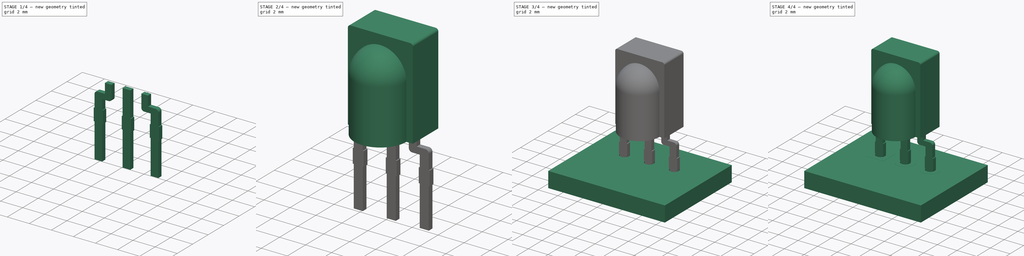
[diagram: build sequence overview — one tinted view per stage of 4, left to right]
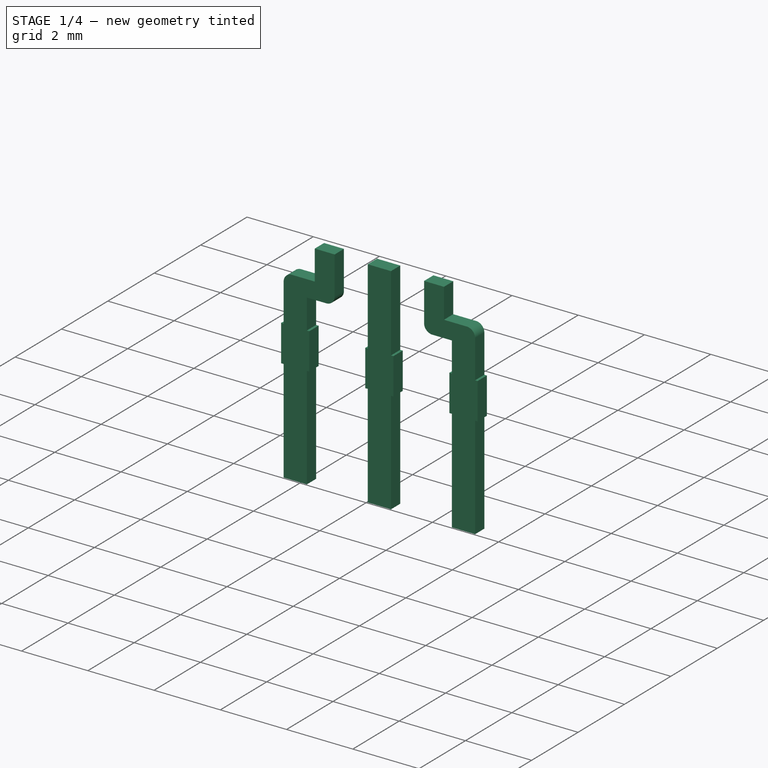
[diagram: stage 1 of 4 — iso view after this stage's code; geometry added in this stage tinted green]
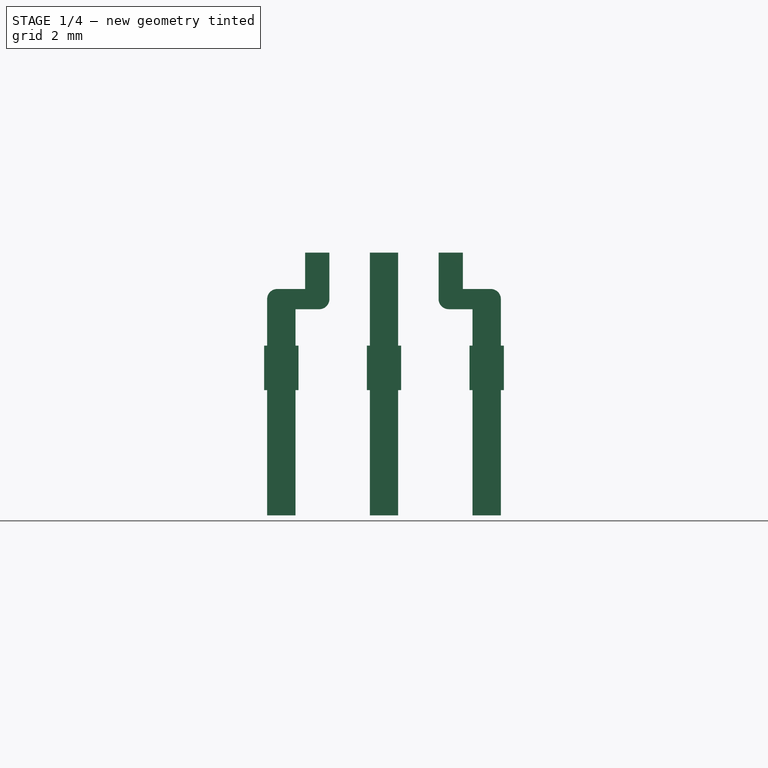
[diagram: stage 1 of 4 — front view after this stage's code; geometry added in this stage tinted green]
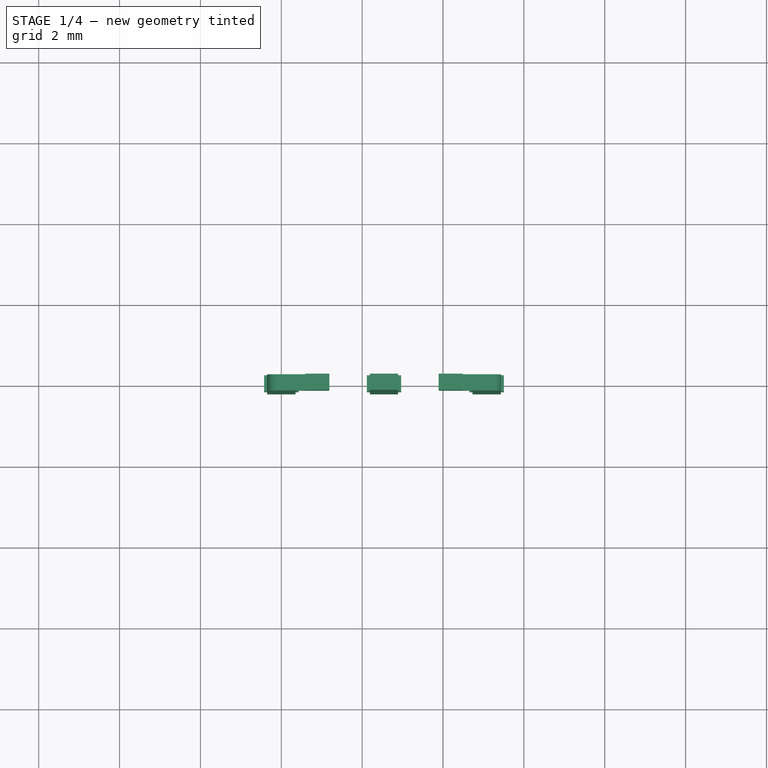
[diagram: stage 1 of 4 — top view after this stage's code; geometry added in this stage tinted green]
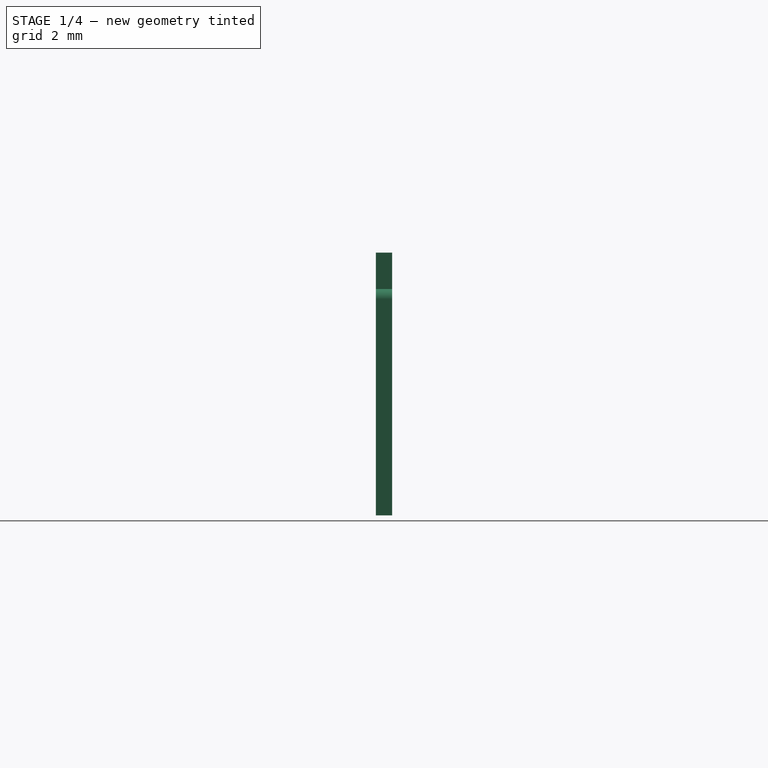
[diagram: stage 1 of 4 — right view after this stage's code; geometry added in this stage tinted green]
FCSTD DOCUMENT  (FreeCAD 0.16R6712 (Git))
Label: Vishay_MINICAST-3pin
License: All rights reserved
LicenseURL: http://en.wikipedia.org/wiki/All_rights_reserved
objects: Part::FeaturePython×7, Sketcher::SketchObject×3, PartDesign::Pad×2, PartDesign::Fillet×2, PartDesign::Revolution×1, App::DocumentObjectGroup×1, Part::MultiFuse×1
note: 19 computed .brp shape members not serialized (recipe doc carries the construction recipe); baked Part::Feature solids carry a one-line shape summary decoded from their .brp

FEATURE [Sketcher::SketchObject] Sketch
  Placement = pos=(0,0,0) rot=(1,0,0;1.5708rad)
  sketch-geometry (64):
    g0: LineSegment StartX=0.425 StartY=0.1 StartZ=0 EndX=0.425 EndY=1.2 EndZ=0
    g1: LineSegment StartX=-0.425 StartY=1.2 StartZ=0 EndX=-0.425 EndY=0.1 EndZ=0
    g2: LineSegment [constr] StartX=0.35 StartY=2.1 StartZ=0 EndX=-0.35 EndY=2.1 EndZ=0
    g3: LineSegment StartX=0.35 StartY=-3 StartZ=0 EndX=-0.35 EndY=-3 EndZ=0
    g4: LineSegment StartX=-0.425 StartY=1.2 StartZ=0 EndX=-0.35 EndY=1.2 EndZ=0
    g5: LineSegment StartX=0.35 StartY=1.2 StartZ=0 EndX=0.425 EndY=1.2 EndZ=0
    g6: LineSegment StartX=-0.425 StartY=0.1 StartZ=0 EndX=-0.35 EndY=0.1 EndZ=0
    g7: LineSegment StartX=0.35 StartY=0.1 StartZ=0 EndX=0.425 EndY=0.1 EndZ=0
    g8: GeomPoint [constr] X=0 Y=2.1 Z=0
    g9: LineSegment [constr] StartX=-0.35 StartY=0.1 StartZ=0 EndX=0.35 EndY=0.1 EndZ=0
    g10: LineSegment [constr] StartX=-0.35 StartY=1.2 StartZ=0 EndX=0.35 EndY=1.2 EndZ=0
    g11: LineSegment StartX=-0.35 StartY=2.1 StartZ=0 EndX=-0.35 EndY=1.2 EndZ=0
    g12: LineSegment StartX=0.35 StartY=1.2 StartZ=0 EndX=0.35 EndY=2.1 EndZ=0
    g13: LineSegment StartX=0.35 StartY=0.1 StartZ=0 EndX=0.35 EndY=-3 EndZ=0
    g14: LineSegment StartX=-0.35 StartY=0.1 StartZ=0 EndX=-0.35 EndY=-3 EndZ=0
    g15: LineSegment StartX=2.965 StartY=0.1 StartZ=0 EndX=2.965 EndY=1.2 EndZ=0
    g16: LineSegment StartX=2.115 StartY=1.2 StartZ=0 EndX=2.115 EndY=0.1 EndZ=0
    g17: LineSegment StartX=2.89 StartY=-3 StartZ=0 EndX=2.19 EndY=-3 EndZ=0
    g18: LineSegment StartX=2.115 StartY=1.2 StartZ=0 EndX=2.19 EndY=1.2 EndZ=0
    g19: LineSegment StartX=2.89 StartY=1.2 StartZ=0 EndX=2.965 EndY=1.2 EndZ=0
    g20: LineSegment StartX=2.115 StartY=0.1 StartZ=0 EndX=2.19 EndY=0.1 EndZ=0
    g21: LineSegment StartX=2.89 StartY=0.1 StartZ=0 EndX=2.965 EndY=0.1 EndZ=0
    g22: GeomPoint [constr] X=2.54 Y=2.1 Z=0
    g23: LineSegment [constr] StartX=2.19 StartY=0.1 StartZ=0 EndX=2.89 EndY=0.1 EndZ=0
    g24: LineSegment [constr] StartX=2.19 StartY=1.2 StartZ=0 EndX=2.89 EndY=1.2 EndZ=0
    g25: LineSegment StartX=2.19 StartY=2.1 StartZ=0 EndX=2.19 EndY=1.2 EndZ=0
    g26: LineSegment StartX=2.89 StartY=1.2 StartZ=0 EndX=2.89 EndY=2.1 EndZ=0
    g27: LineSegment StartX=2.89 StartY=0.1 StartZ=0 EndX=2.89 EndY=-3 EndZ=0
    g28: LineSegment StartX=2.19 StartY=0.1 StartZ=0 EndX=2.19 EndY=-3 EndZ=0
    g29: LineSegment StartX=5.505 StartY=0.1 StartZ=0 EndX=5.505 EndY=1.2 EndZ=0
    g30: LineSegment StartX=4.655 StartY=1.2 StartZ=0 EndX=4.655 EndY=0.1 EndZ=0
    g31: LineSegment [constr] StartX=5.43 StartY=2.1 StartZ=0 EndX=4.73 EndY=2.1 EndZ=0
    g32: LineSegment StartX=5.43 StartY=-3 StartZ=0 EndX=4.73 EndY=-3 EndZ=0
    g33: LineSegment StartX=4.655 StartY=1.2 StartZ=0 EndX=4.73 EndY=1.2 EndZ=0
    g34: LineSegment StartX=5.43 StartY=1.2 StartZ=0 EndX=5.505 EndY=1.2 EndZ=0
    g35: LineSegment StartX=4.655 StartY=0.1 StartZ=0 EndX=4.73 EndY=0.1 EndZ=0
    g36: LineSegment StartX=5.43 StartY=0.1 StartZ=0 EndX=5.505 EndY=0.1 EndZ=0
    g37: GeomPoint [constr] X=5.08 Y=2.1 Z=0
    g38: LineSegment [constr] StartX=4.73 StartY=0.1 StartZ=0 EndX=5.43 EndY=0.1 EndZ=0
    g39: LineSegment [constr] StartX=4.73 StartY=1.2 StartZ=0 EndX=5.43 EndY=1.2 EndZ=0
    g40: LineSegment StartX=4.73 StartY=2.1 StartZ=0 EndX=4.73 EndY=1.2 EndZ=0
    g41: LineSegment StartX=5.43 StartY=1.2 StartZ=0 EndX=5.43 EndY=2.1 EndZ=0
    g42: LineSegment StartX=5.43 StartY=0.1 StartZ=0 EndX=5.43 EndY=-3 EndZ=0
    g43: LineSegment StartX=4.73 StartY=0.1 StartZ=0 EndX=4.73 EndY=-3 EndZ=0
    g44: LineSegment [constr] StartX=2.54 StartY=2.1 StartZ=0 EndX=5.08 EndY=2.1 EndZ=0
    g45: LineSegment [constr] StartX=2.19 StartY=2.1 StartZ=0 EndX=2.89 EndY=2.1 EndZ=0
    g46: LineSegment [constr] StartX=0 StartY=2.1 StartZ=0 EndX=2.54 EndY=2.1 EndZ=0
    g47: LineSegment StartX=-0.35 StartY=2.1 StartZ=0 EndX=-0.35 EndY=2.6 EndZ=0
    g48: LineSegment StartX=-0.35 StartY=2.6 StartZ=0 EndX=0.59 EndY=2.6 EndZ=0
    g49: LineSegment StartX=0.59 StartY=2.6 StartZ=0 EndX=0.59 EndY=3.5 EndZ=0
    g50: LineSegment StartX=0.59 StartY=3.5 StartZ=0 EndX=1.19 EndY=3.5 EndZ=0
    g51: LineSegment StartX=1.19 StartY=3.5 StartZ=0 EndX=1.19 EndY=2.1 EndZ=0
    g52: LineSegment StartX=1.19 StartY=2.1 StartZ=0 EndX=0.35 EndY=2.1 EndZ=0
    g53: LineSegment StartX=2.19 StartY=2.1 StartZ=0 EndX=2.19 EndY=3.5 EndZ=0
    g54: LineSegment StartX=2.19 StartY=3.5 StartZ=0 EndX=2.89 EndY=3.5 EndZ=0
    g55: LineSegment StartX=2.89 StartY=3.5 StartZ=0 EndX=2.89 EndY=2.1 EndZ=0
    g56: LineSegment StartX=5.43 StartY=2.1 StartZ=0 EndX=5.43 EndY=2.6 EndZ=0
    g57: LineSegment StartX=5.43 StartY=2.6 StartZ=0 EndX=4.49 EndY=2.6 EndZ=0
    g58: LineSegment StartX=4.49 StartY=2.6 StartZ=0 EndX=4.49 EndY=3.5 EndZ=0
    g59: LineSegment StartX=4.49 StartY=3.5 StartZ=0 EndX=3.89 EndY=3.5 EndZ=0
    g60: LineSegment StartX=3.89 StartY=3.5 StartZ=0 EndX=3.89 EndY=2.1 EndZ=0
    g61: LineSegment StartX=3.89 StartY=2.1 StartZ=0 EndX=4.73 EndY=2.1 EndZ=0
    g62: LineSegment [constr] StartX=0.59 StartY=3.5 StartZ=0 EndX=2.19 EndY=3.5 EndZ=0
    g63: LineSegment [constr] StartX=2.19 StartY=3.5 StartZ=0 EndX=3.89 EndY=3.5 EndZ=0
  constraints (174):
    c: Vertical(g0)
    c: Vertical(g1)
    c: Horizontal(g2)
    c: Horizontal(g3)
    c: Coincident(g4,g1)
    c: Coincident(g5,g0)
    c: Horizontal(g5)
    c: Coincident(g6,g1)
    c: Horizontal(g6)
    c: Coincident(g7,g0)
    c: Horizontal(g7)
    c: Horizontal(g4)
    c: Equal(g5,g4)
    c: Equal(g4,g6)
    c: Equal(g6,g7)
    c: PointOnObject(g8,g-2)
    c: Symmetric(g2,g2,g8)
    c: DistanceX(g2,g2) = 0.7
    c: DistanceX(g1,g0) = 0.85
    c: Horizontal(g9)
    c: DistanceY(g-1,g1) = 0.1
    c: DistanceY(g1,g1) = 1.1
    c: DistanceY(g4,g2) = 0.9
    c: Horizontal(g10)
    c: Coincident(g11,g2)
    c: Coincident(g11,g4)
    c: Vertical(g11)
    c: Coincident(g12,g5)
    c: Coincident(g12,g2)
    c: Vertical(g12)
    c: Coincident(g13,g3)
    c: Vertical(g13)
    c: Coincident(g14,g6)
    c: Coincident(g14,g3)
    c: Vertical(g14)
    c: Coincident(g7,g9)
    c: Coincident(g7,g13)
    c: DistanceY(g3,g-1) = 3
    c: Coincident(g9,g6)
    c: Vertical(g15)
    c: Vertical(g16)
    c: Horizontal(g17)
    c: Coincident(g18,g16)
    c: Coincident(g19,g15)
    c: Horizontal(g19)
    c: Coincident(g20,g16)
    c: Horizontal(g20)
    c: Coincident(g21,g15)
    c: Horizontal(g21)
    c: Horizontal(g18)
    c: Equal(g19,g18)
    c: Equal(g18,g20)
    c: Equal(g20,g21)
    c: Symmetric(g26,g25,g22)
    c: Horizontal(g23)
    c: Equal(g1,g16) = 2
    c: Horizontal(g24)
    c: Coincident(g25,g18)
    c: Vertical(g25)
    c: Coincident(g26,g19)
    c: Vertical(g26)
    c: Coincident(g27,g17)
    c: Vertical(g27)
    c: Coincident(g28,g20)
    c: Coincident(g28,g17)
    c: Vertical(g28)
    c: Coincident(g21,g23)
    c: Coincident(g21,g27)
    c: Coincident(g23,g20)
    c: DistanceX(g8,g22) = 2.54
    c: Coincident(g24,g19)
    c: Coincident(g24,g18)
    c: Coincident(g10,g5)
    c: Coincident(g10,g4)
    c: Equal(g16,g1)
    c: Equal(g28,g14)
    c: Vertical(g29)
    c: Vertical(g30)
    c: Horizontal(g31)
    c: Horizontal(g32)
    c: Coincident(g33,g30)
    c: Coincident(g34,g29)
    c: Horizontal(g34)
    c: Coincident(g35,g30)
    c: Horizontal(g35)
    c: Coincident(g36,g29)
    c: Horizontal(g36)
    c: Horizontal(g33)
    c: Equal(g34,g33)
    c: Equal(g33,g35)
    c: Equal(g35,g36)
    c: Symmetric(g31,g31,g37)
    c: Horizontal(g38)
    c: Horizontal(g39)
    c: Coincident(g40,g31)
    c: Coincident(g40,g33)
    c: Vertical(g40)
    c: Coincident(g41,g34)
    c: Coincident(g41,g31)
    c: Vertical(g41)
    c: Coincident(g42,g32)
    c: Vertical(g42)
    c: Coincident(g43,g35)
    c: Coincident(g43,g32)
    c: Vertical(g43)
    c: Coincident(g36,g38)
    c: Coincident(g36,g42)
    c: Coincident(g38,g35)
    c: Coincident(g39,g34)
    c: Coincident(g39,g33)
    c: Coincident(g44,g22)
    c: Coincident(g44,g37)
    c: Horizontal(g44)
    c: DistanceX(g44,g44) = 2.54
    c: Coincident(g45,g25)
    c: Coincident(g45,g26)
    c: Horizontal(g45)
    c: Equal(g45,g2)
    c: Equal(g2,g31)
    c: Equal(g19,g34)
    c: Equal(g34,g5)
    c: Coincident(g46,g8)
    c: Coincident(g46,g22)
    c: Horizontal(g46)
    c: Equal(g25,g11)
    c: Equal(g11,g40)
    c: Equal(g43,g28)
    c: Equal(g30,g16)
    c: Coincident(g47,g2)
    c: Vertical(g47)
    c: Coincident(g48,g47)
    c: Horizontal(g48)
    c: Coincident(g49,g48)
    c: Vertical(g49)
    c: Coincident(g50,g49)
    c: Horizontal(g50)
    c: Coincident(g51,g50)
    c: PointOnObject(g51,g46)
    c: Vertical(g51)
    c: Coincident(g52,g51)
    c: Coincident(g52,g2)
    c: DistanceX(g47,g50) = 1.54
    c: DistanceX(g50,g50) = 0.6
    c: DistanceY(g2,g48) = 0.5
    c: DistanceY(g-1,g50) = 3.5
    c: Coincident(g53,g25)
    c: Vertical(g53)
    c: Coincident(g54,g53)
    c: Horizontal(g54)
    c: Coincident(g55,g54)
    c: Coincident(g55,g26)
    c: Vertical(g55)
    c: Coincident(g56,g31)
    c: Vertical(g56)
    c: Coincident(g57,g56)
    c: Horizontal(g57)
    c: Coincident(g58,g57)
    c: Vertical(g58)
    c: Coincident(g59,g58)
    c: Horizontal(g59)
    c: Vertical(g60)
    c: Coincident(g61,g60)
    c: Coincident(g61,g31)
    c: Equal(g59,g50)
    c: Equal(g58,g49)
    c: Coincident(g59,g60)
    c: PointOnObject(g60,g44)
    c: Equal(g57,g48)
    c: Equal(g56,g47)
    c: Coincident(g62,g49)
    c: Coincident(g62,g53)
    c: Coincident(g63,g53)
    c: Coincident(g63,g59)
    c: Horizontal(g63)
FEATURE [PartDesign::Pad] Pad
  Length = 0.4
  Length2 = 100
  Midplane = true
  Placement = pos=(0,0,0) rot=(1,0,0;1.5708rad)
  Sketch = -> Sketch
  Type = 0
FEATURE [PartDesign::Fillet] Fillet001
  Base = -> Pad [Edge77,Edge26,Edge65,Edge14]
  Placement = pos=(0,0,0) rot=(1,0,0;1.5708rad)
  Radius = 0.25
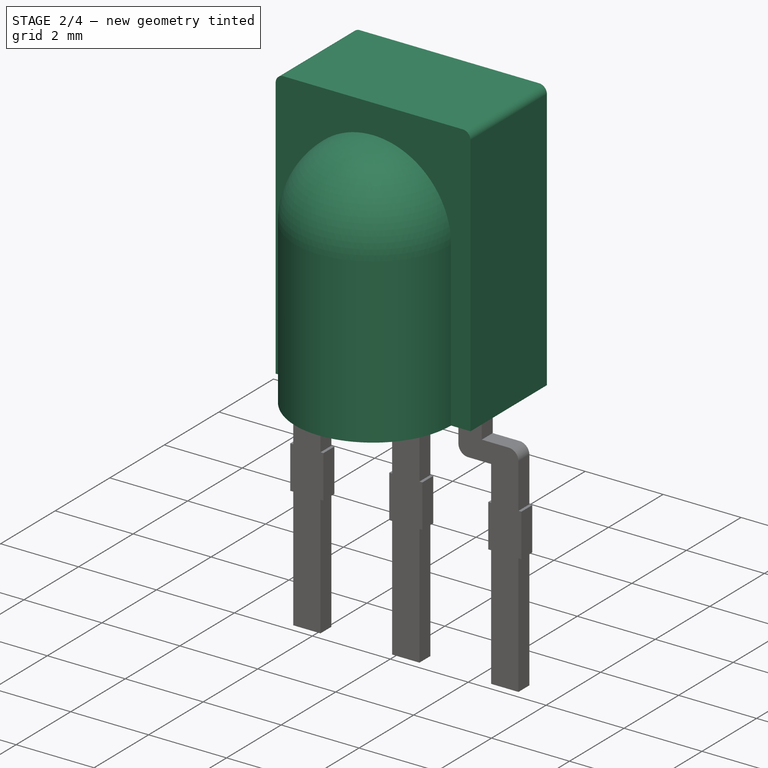
[diagram: stage 2 of 4 — iso view after this stage's code; geometry added in this stage tinted green]
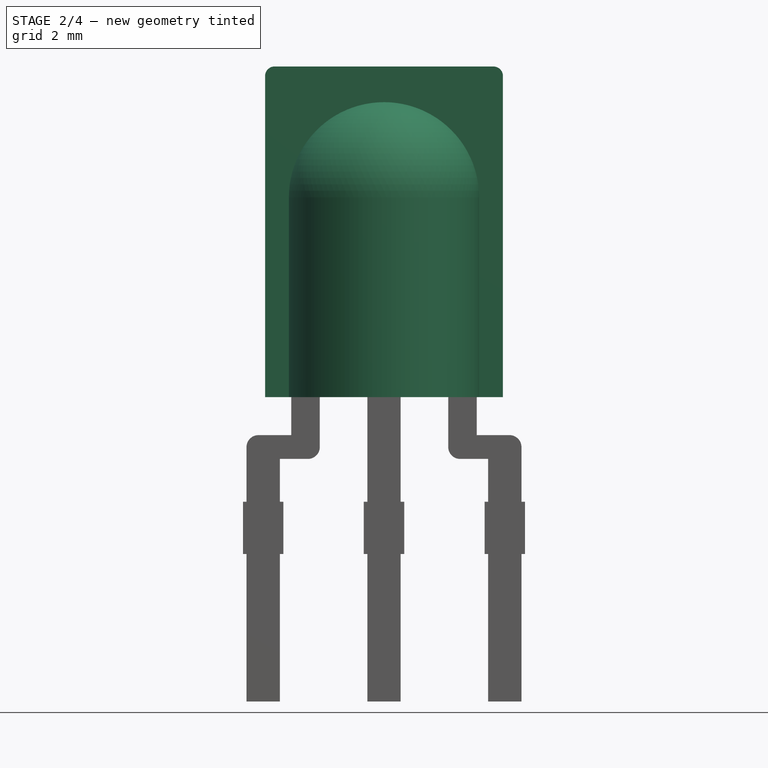
[diagram: stage 2 of 4 — front view after this stage's code; geometry added in this stage tinted green]
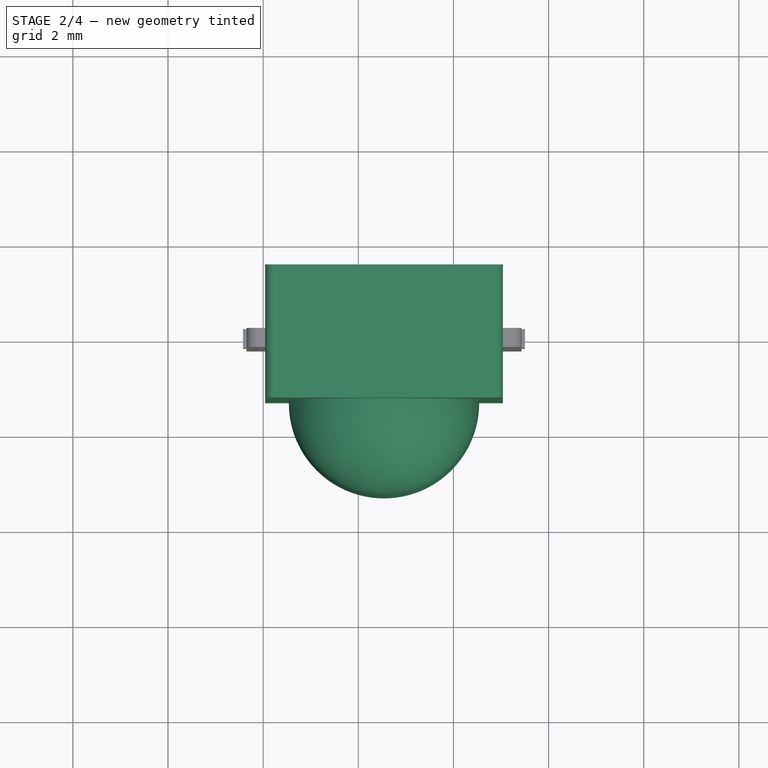
[diagram: stage 2 of 4 — top view after this stage's code; geometry added in this stage tinted green]
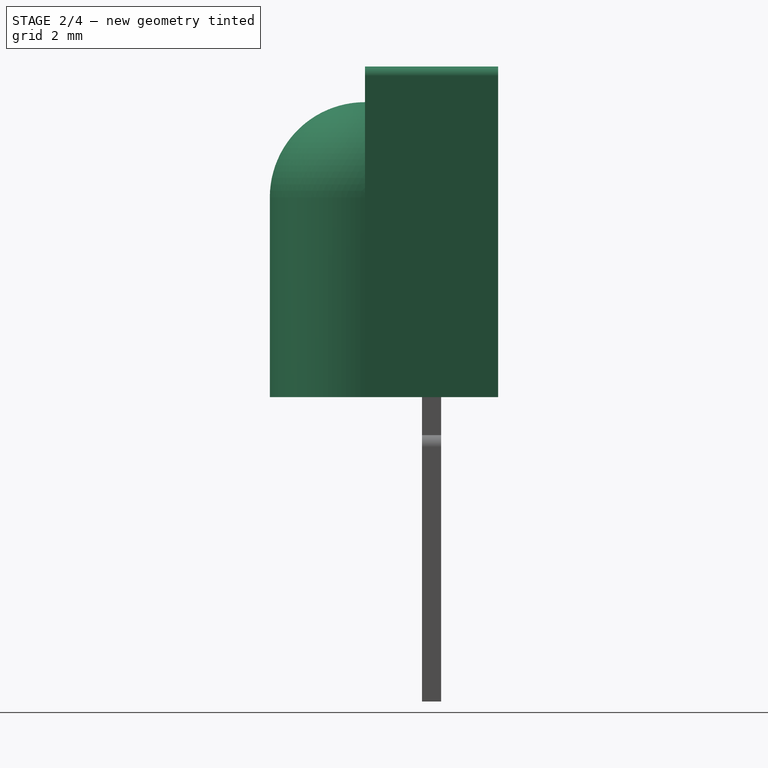
[diagram: stage 2 of 4 — right view after this stage's code; geometry added in this stage tinted green]
FEATURE [Sketcher::SketchObject] Sketch001
  Placement = pos=(0,0,0) rot=(1,0,0;1.5708rad)
  expr: Constraints[11] = 1.1 + 0.9 + 0.1 + 8.25 - 6.95
  expr: Constraints[10] = (5 - 5.08) / 2
  sketch-geometry (4):
    g0: LineSegment StartX=0.04 StartY=3.4 StartZ=0 EndX=5.04 EndY=3.4 EndZ=0
    g1: LineSegment StartX=5.04 StartY=3.4 StartZ=0 EndX=5.04 EndY=10.35 EndZ=0
    g2: LineSegment StartX=5.04 StartY=10.35 StartZ=0 EndX=0.04 EndY=10.35 EndZ=0
    g3: LineSegment StartX=0.04 StartY=10.35 StartZ=0 EndX=0.04 EndY=3.4 EndZ=0
  constraints (12):
    c: Coincident(g0,g1)
    c: Coincident(g1,g2)
    c: Coincident(g2,g3)
    c: Coincident(g3,g0)
    c: Horizontal(g0)
    c: Horizontal(g2)
    c: Vertical(g1)
    c: Vertical(g3)
    c: DistanceX(g2,g2) = 5
    c: DistanceY(g1,g1) = 6.95
    c: DistanceX(g0,g-1) = -0.04
    c: DistanceY(g-1,g0) = 3.4
FEATURE [PartDesign::Pad] Pad001
  Length = 2.8
  Length2 = 1.6
  Midplane = true
  Placement = pos=(0,0,0) rot=(1,0,0;1.5708rad)
  Sketch = -> Sketch001
  Type = 0
FEATURE [Sketcher::SketchObject] Sketch002
  Placement = pos=(0,-1.4,0) rot=(1,0,0;1.5708rad)
  expr: Constraints[1] = 5.5 - (8.25 - 6.95)
  expr: Constraints[2] = 2.54
  sketch-geometry (7):
    g0: LineSegment StartX=4.54 StartY=3.4 StartZ=0 EndX=4.54 EndY=7.6 EndZ=0
    g1: GeomPoint [constr] X=2.54 Y=3.4 Z=0
    g2: LineSegment [constr] StartX=2.54 StartY=3.4 StartZ=0 EndX=2.54 EndY=9.6 EndZ=0
    g3: LineSegment StartX=4.54 StartY=3.4 StartZ=0 EndX=2.54 EndY=3.4 EndZ=0
    g4: LineSegment StartX=2.54 StartY=3.4 StartZ=0 EndX=2.54 EndY=9.6 EndZ=0
    g5: ArcOfCircle CenterX=2.54 CenterY=7.6 CenterZ=0 NormalX=0 NormalY=0 NormalZ=1 Radius=2 StartAngle=0 EndAngle=1.5708
    g6: LineSegment [constr] StartX=2.54 StartY=7.6 StartZ=0 EndX=4.54 EndY=7.6 EndZ=0
  constraints (19):
    c: Vertical(g0)
    c: DistanceY(g0,g0) = 4.2
    c: DistanceX(g-1,g1) = 2.54
    c: Coincident(g2,g1)
    c: Vertical(g2)
    c: DistanceX(g1,g0) = 2
    c: DistanceY(g-1,g1) = 3.4
    c: Coincident(g3,g0)
    c: Coincident(g3,g1)
    c: Horizontal(g3)
    c: Coincident(g4,g1)
    c: PointOnObject(g4,g2)
    c: PointOnObject(g5,g2)
    c: Coincident(g5,g0)
    c: Coincident(g5,g4)
    c: Coincident(g2,g4)
    c: Coincident(g6,g5)
    c: Coincident(g6,g0)
    c: Horizontal(g6)
FEATURE [PartDesign::Revolution] Revolution
  Angle = 360
  Axis = (0,0,6.2)
  Base = (2.54,-1.4,3.4)
  Placement = pos=(0,-1.4,0) rot=(1,0,0;1.5708rad)
  ReferenceAxis = -> Sketch002 [Axis0]
  Reversed = true
  Sketch = -> Sketch002
FEATURE [App::DocumentObjectGroup] IRReceiver_Vishay_MINICAST_3pin_fp
  Group = -> [FCrtYd_lines,FFab_lines,Filk_lines,TopPads,BotPads,THPs,newPCB]
FEATURE [PartDesign::Fillet] Fillet
  Base = -> Pad001 [Edge5,Edge8]
  Placement = pos=(0,0,0) rot=(1,0,0;1.5708rad)
  Radius = 0.2
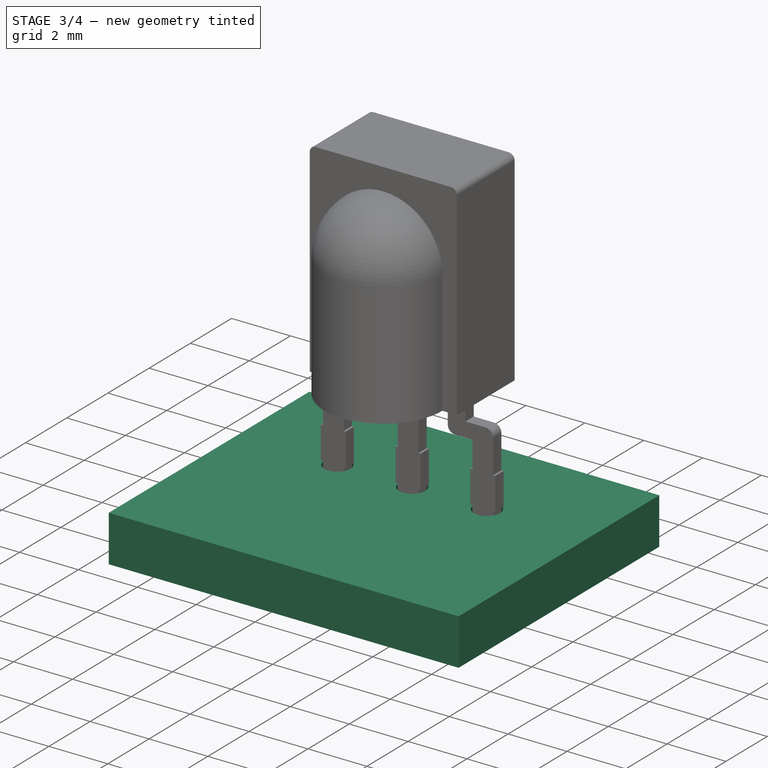
[diagram: stage 3 of 4 — iso view after this stage's code; geometry added in this stage tinted green]
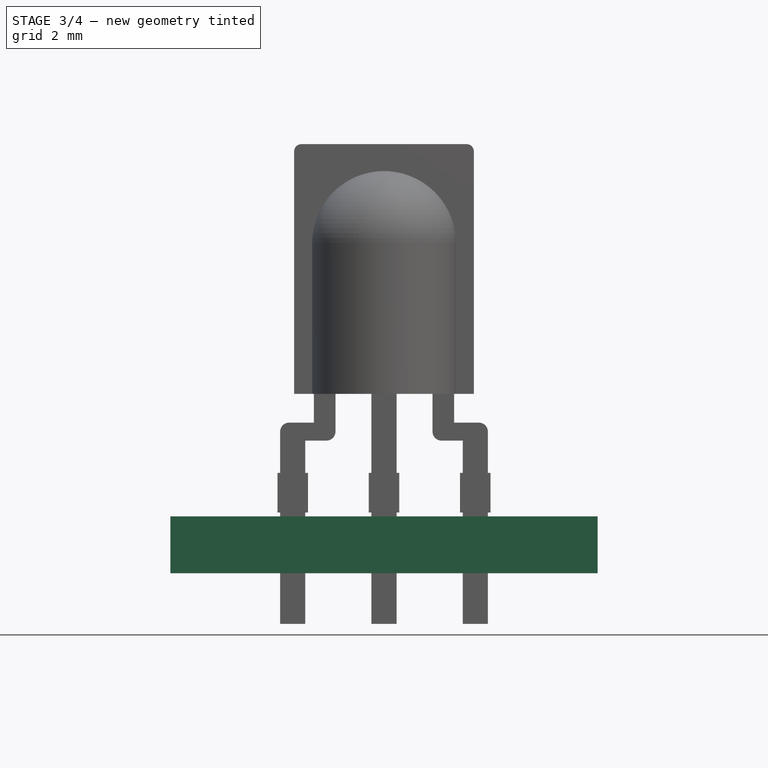
[diagram: stage 3 of 4 — front view after this stage's code; geometry added in this stage tinted green]
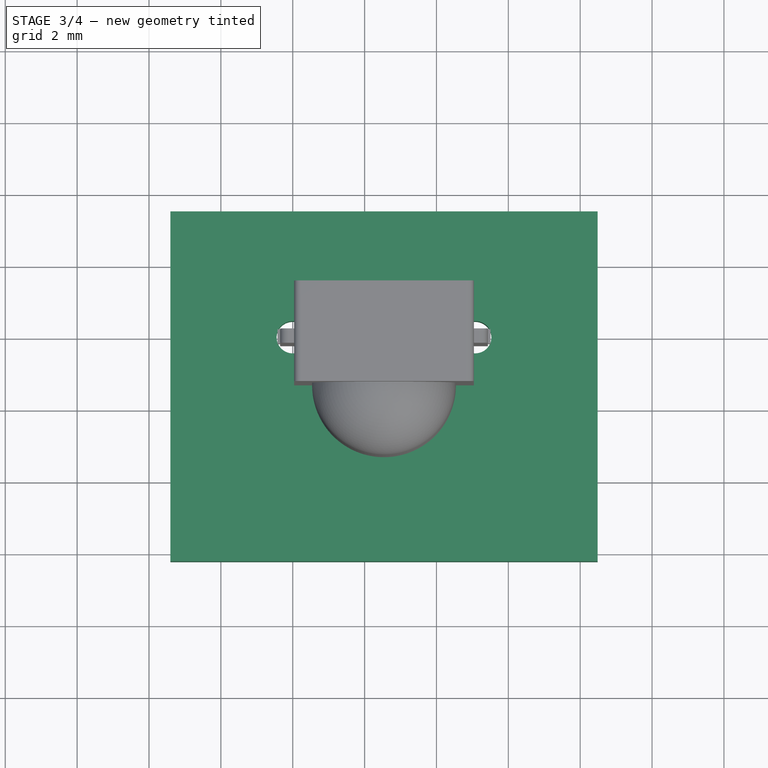
[diagram: stage 3 of 4 — top view after this stage's code; geometry added in this stage tinted green]
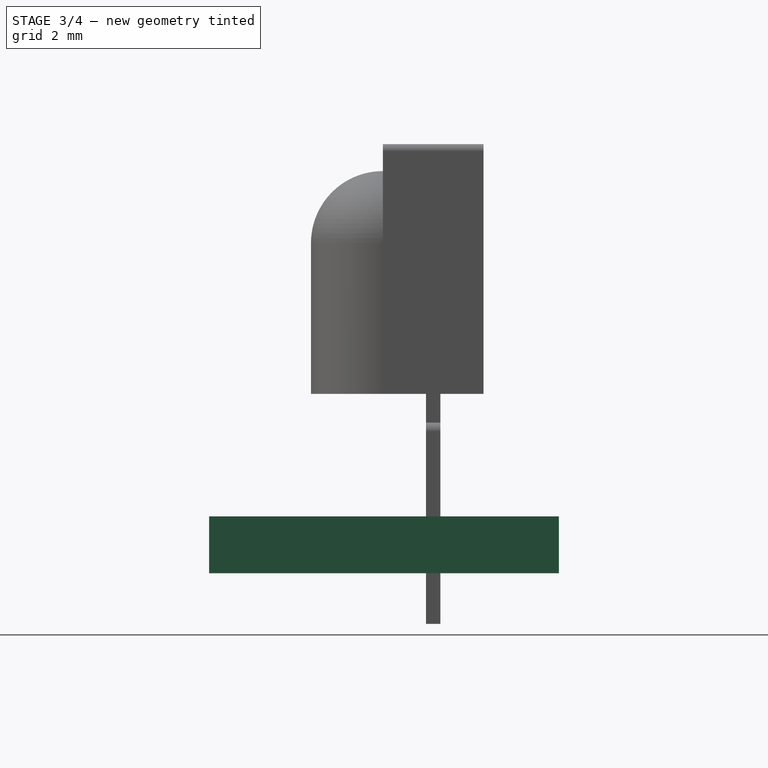
[diagram: stage 3 of 4 — right view after this stage's code; geometry added in this stage tinted green]
FEATURE [Part::FeaturePython] THPs  label="PTHs"  # a2plus imported part (geometry in sourceFile) (typed FeaturePython)
  fixedPosition = true
FEATURE [Part::FeaturePython] newPCB  label="Pcb"  # a2plus imported part (geometry in sourceFile) (typed FeaturePython)
  fixedPosition = true
FEATURE [Part::MultiFuse] Revolution_mp_cp  label="Vishay_MINICAST-3pin"
  Shapes = -> [Revolution,Fillet,Fillet001]
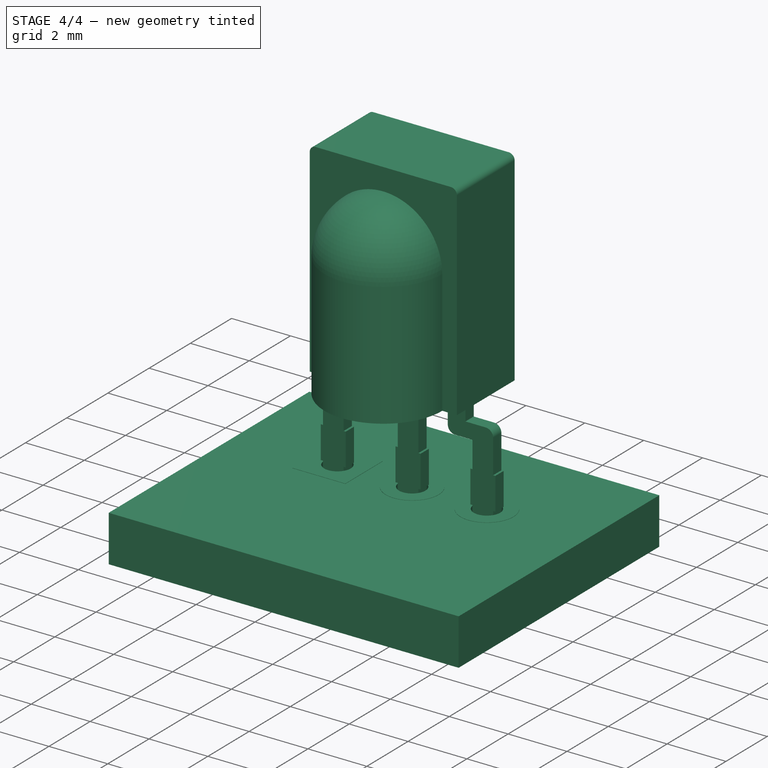
[diagram: stage 4 of 4 — iso view after this stage's code; geometry added in this stage tinted green]
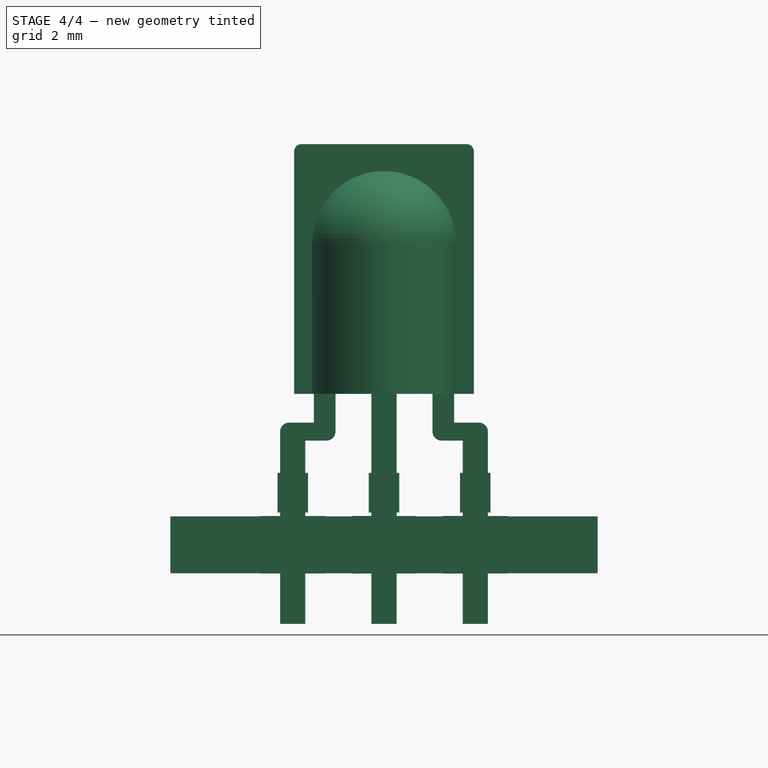
[diagram: stage 4 of 4 — front view after this stage's code; geometry added in this stage tinted green]
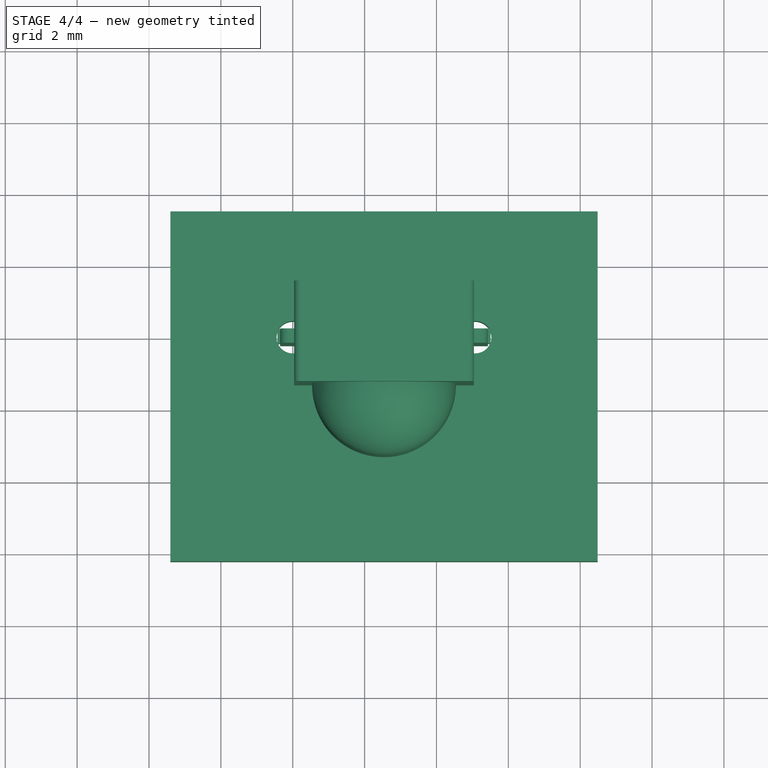
[diagram: stage 4 of 4 — top view after this stage's code; geometry added in this stage tinted green]
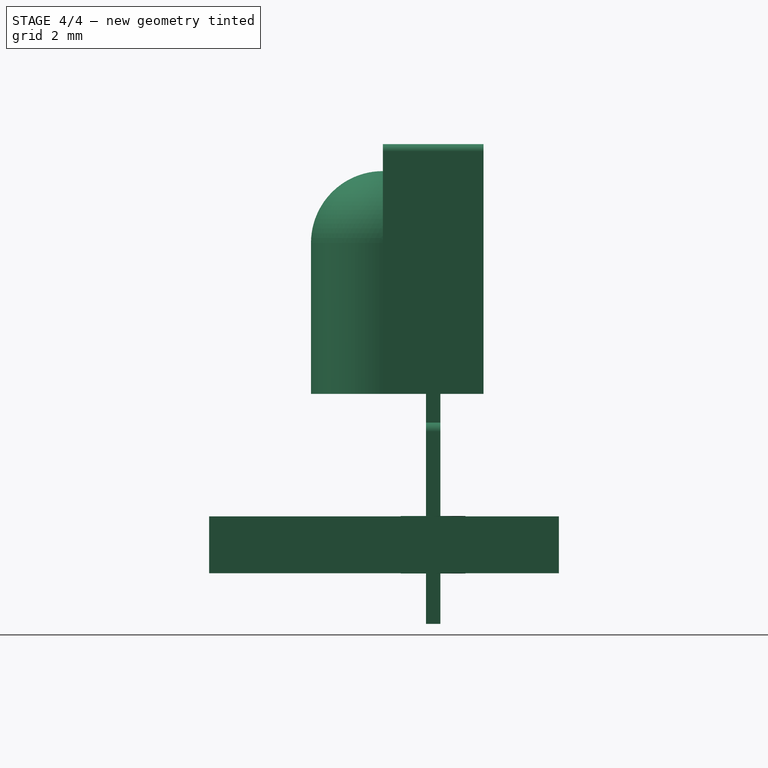
[diagram: stage 4 of 4 — right view after this stage's code; geometry added in this stage tinted green]
FEATURE [Part::FeaturePython] FCrtYd_lines  label="FCrtYd"  # a2plus imported part (geometry in sourceFile) (typed FeaturePython)
  fixedPosition = true
FEATURE [Part::FeaturePython] FFab_lines  label="FFab"  # a2plus imported part (geometry in sourceFile) (typed FeaturePython)
  fixedPosition = true
FEATURE [Part::FeaturePython] Filk_lines  label="FrontSilk"  # a2plus imported part (geometry in sourceFile) (typed FeaturePython)
  fixedPosition = true
FEATURE [Part::FeaturePython] TopPads  # a2plus imported part (geometry in sourceFile) (typed FeaturePython)
  fixedPosition = true
FEATURE [Part::FeaturePython] BotPads  # a2plus imported part (geometry in sourceFile) (typed FeaturePython)
  fixedPosition = true
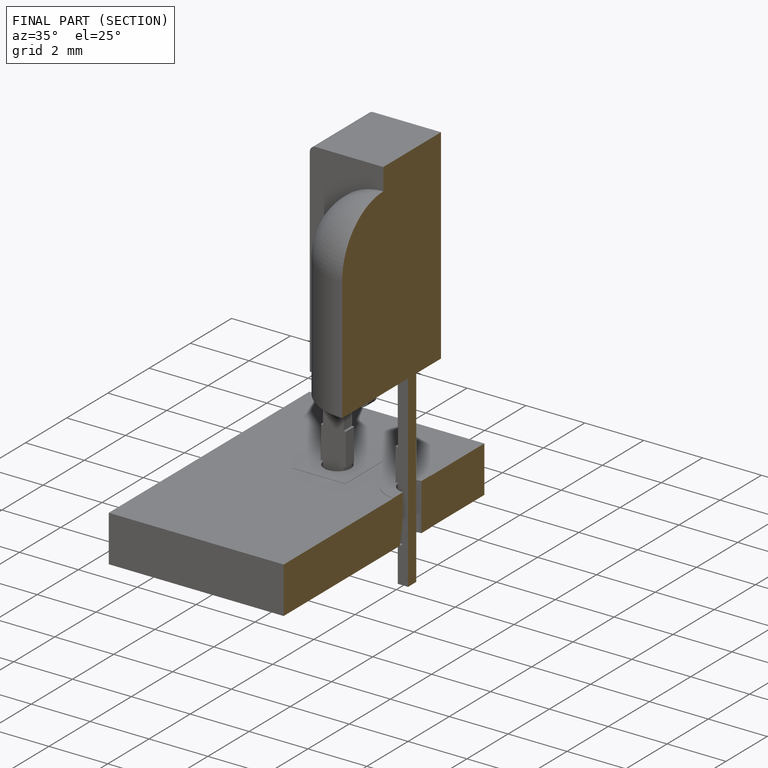
[diagram: finished part — half-section view (interior)]
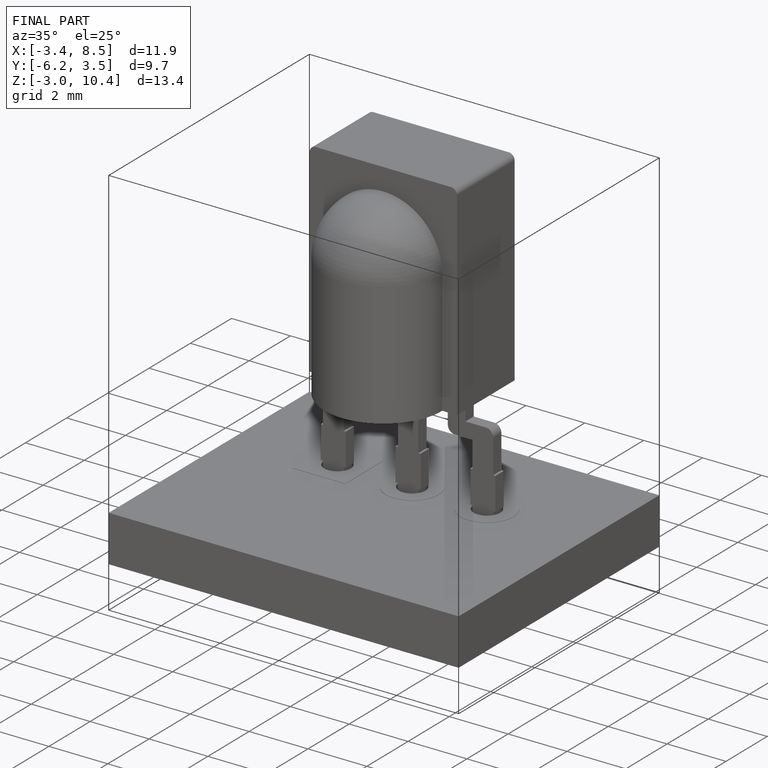
[diagram: finished part — iso view with bounding-box wireframe]
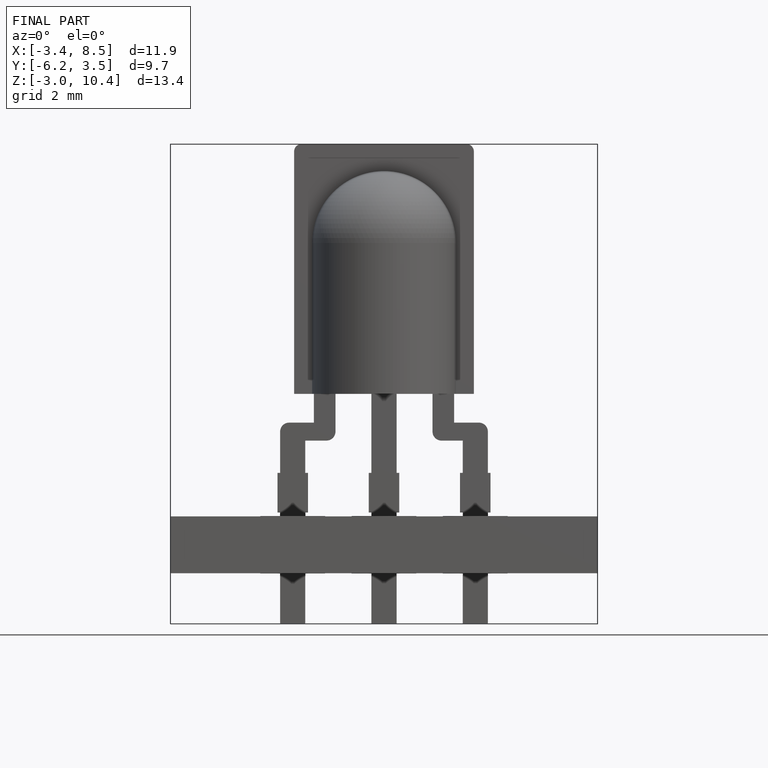
[diagram: finished part — front view with bounding-box wireframe]
